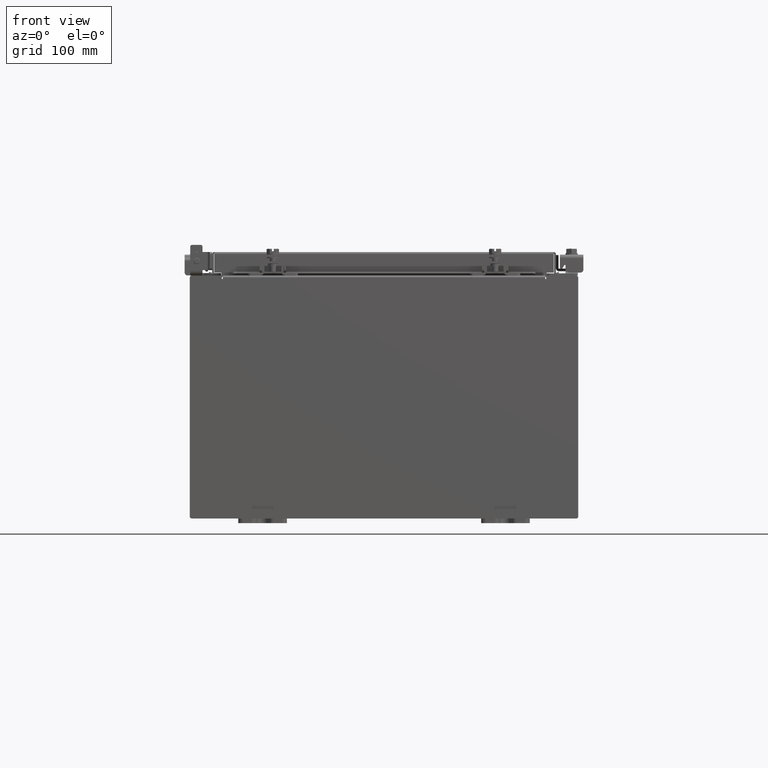
[diagram: clean part render]
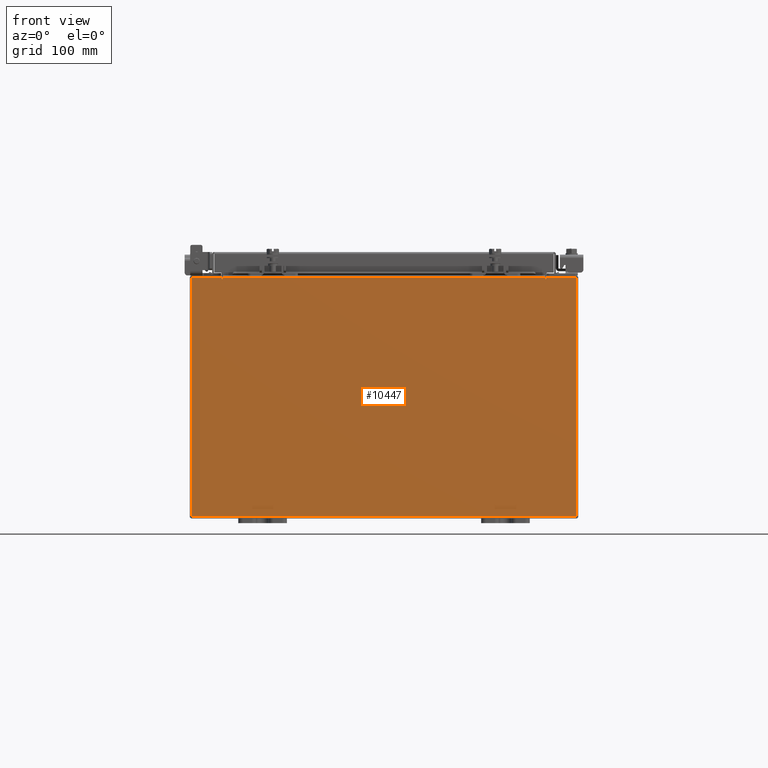
[diagram: same view with one face highlighted and labeled with its STEP entity id]
A machine part, front view. The second image highlights one B-rep face of the part: STEP entity #10447.
In plain terms, the highlighted planar face has unit normal (-0, 1, -0).
Its self-contained STEP definition (entity closure, byte-faithful):
#60 = CARTESIAN_POINT ( 'NONE',  ( -6.637200000000000900, -0.0000000000000000000, 4.874950000000001000 ) ) ;
#322 = CARTESIAN_POINT ( 'NONE',  ( 7.925299999999996500, 0.0000000000000000000, -4.925299999999998200 ) ) ;
#449 = ORIENTED_EDGE ( 'NONE', *, *, #14647, .T. ) ;
#488 = DIRECTION ( 'NONE',  ( 0.0000000000000000000, -1.000000000000000000, 0.0000000000000000000 ) ) ;
#594 = CARTESIAN_POINT ( 'NONE',  ( -7.925300000000002700, 0.0000000000000000000, -4.925299999999998200 ) ) ;
#746 = EDGE_CURVE ( 'NONE', #2899, #3376, #5145, .T. ) ;
#936 = VERTEX_POINT ( 'NONE', #21540 ) ;
#969 = CARTESIAN_POINT ( 'NONE',  ( -6.637200000000000900, -1.707404996040164500E-016, 4.912300000000001000 ) ) ;
#1412 = DIRECTION ( 'NONE',  ( 1.000000000000000000, 0.0000000000000000000, 0.0000000000000000000 ) ) ;
#1435 = CARTESIAN_POINT ( 'NONE',  ( -7.925300000000002700, 0.0000000000000000000, 4.925300000000000900 ) ) ;
#1608 = DIRECTION ( 'NONE',  ( 0.0000000000000000000, 0.0000000000000000000, 1.000000000000000000 ) ) ;
#2502 = EDGE_CURVE ( 'NONE', #2899, #3244, #4264, .T. ) ;
#2567 = CARTESIAN_POINT ( 'NONE',  ( -7.925300000000002700, 0.0000000000000000000, -4.925299999999998200 ) ) ;
#2899 = VERTEX_POINT ( 'NONE', #6778 ) ;
#2960 = LINE ( 'NONE', #20295, #20845 ) ;
#3244 = VERTEX_POINT ( 'NONE', #7835 ) ;
#3276 = CARTESIAN_POINT ( 'NONE',  ( 6.637199999999999100, 0.0000000000000000000, 0.0000000000000000000 ) ) ;
#3314 = VECTOR ( 'NONE', #11628, 39.37007874015748100 ) ;
#3376 = VERTEX_POINT ( 'NONE', #7309 ) ;
#3781 = AXIS2_PLACEMENT_3D ( 'NONE', #17560, #488, #12676 ) ;
#3867 = LINE ( 'NONE', #22046, #3314 ) ;
#4190 = DIRECTION ( 'NONE',  ( 1.000000000000000000, 0.0000000000000000000, 0.0000000000000000000 ) ) ;
#4264 = LINE ( 'NONE', #20467, #8400 ) ;
#4282 = VERTEX_POINT ( 'NONE', #21811 ) ;
#4412 = EDGE_LOOP ( 'NONE', ( #21709, #5655, #12862, #7135, #6607, #20739, #11516, #15934, #14807, #5050, #449, #20298 ) ) ;
#4793 = VERTEX_POINT ( 'NONE', #16652 ) ;
#5050 = ORIENTED_EDGE ( 'NONE', *, *, #9966, .T. ) ;
#5145 = LINE ( 'NONE', #1435, #18369 ) ;
#5427 = VERTEX_POINT ( 'NONE', #60 ) ;
#5534 = LINE ( 'NONE', #17636, #13684 ) ;
#5648 = VERTEX_POINT ( 'NONE', #594 ) ;
#5655 = ORIENTED_EDGE ( 'NONE', *, *, #21139, .F. ) ;
#6019 = EDGE_CURVE ( 'NONE', #3244, #4282, #13297, .T. ) ;
#6369 = CARTESIAN_POINT ( 'NONE',  ( -6.674550000000000900, 0.0000000000000000000, 4.874950000000001000 ) ) ;
#6607 = ORIENTED_EDGE ( 'NONE', *, *, #8392, .F. ) ;
#6776 = DIRECTION ( 'NONE',  ( -0.0000000000000000000, 1.000000000000000000, -0.0000000000000000000 ) ) ;
#6778 = CARTESIAN_POINT ( 'NONE',  ( 6.674549999999998200, 0.0000000000000000000, 4.925300000000000900 ) ) ;
#7135 = ORIENTED_EDGE ( 'NONE', *, *, #11867, .T. ) ;
#7254 = LINE ( 'NONE', #3276, #21006 ) ;
#7309 = CARTESIAN_POINT ( 'NONE',  ( 7.925299999999996500, 0.0000000000000000000, 4.925300000000000900 ) ) ;
#7502 = CARTESIAN_POINT ( 'NONE',  ( -6.637200000000000900, -0.0000000000000000000, 0.0000000000000000000 ) ) ;
#7747 = LINE ( 'NONE', #14579, #16882 ) ;
#7835 = CARTESIAN_POINT ( 'NONE',  ( 6.674549999999999100, 0.0000000000000000000, 4.874950000000001000 ) ) ;
#8024 = DIRECTION ( 'NONE',  ( 1.000000000000000000, 0.0000000000000000000, 0.0000000000000000000 ) ) ;
#8392 = EDGE_CURVE ( 'NONE', #4282, #4793, #7254, .T. ) ;
#8400 = VECTOR ( 'NONE', #15207, 39.37007874015748100 ) ;
#8616 = CARTESIAN_POINT ( 'NONE',  ( 6.655874999999998200, 0.0000000000000000000, 4.874950000000001000 ) ) ;
#9067 = DIRECTION ( 'NONE',  ( 0.0000000000000000000, 0.0000000000000000000, -1.000000000000000000 ) ) ;
#9243 = DIRECTION ( 'NONE',  ( 0.0000000000000000000, 0.0000000000000000000, -1.000000000000000000 ) ) ;
#9604 = VECTOR ( 'NONE', #8024, 39.37007874015748100 ) ;
#9966 = EDGE_CURVE ( 'NONE', #21319, #5648, #17433, .T. ) ;
#10364 = DIRECTION ( 'NONE',  ( 0.0000000000000000000, 0.0000000000000000000, -1.000000000000000000 ) ) ;
#10447 = ADVANCED_FACE ( 'NONE', ( #19018 ), #21258, .F. ) ;
#11452 = AXIS2_PLACEMENT_3D ( 'NONE', #8616, #20648, #10364 ) ;
#11516 = ORIENTED_EDGE ( 'NONE', *, *, #2502, .F. ) ;
#11628 = DIRECTION ( 'NONE',  ( 0.0000000000000000000, 0.0000000000000000000, 1.000000000000000000 ) ) ;
#11867 = EDGE_CURVE ( 'NONE', #20147, #4793, #13660, .T. ) ;
#12213 = CARTESIAN_POINT ( 'NONE',  ( -6.637200000000000900, -1.707404996040164500E-016, 4.912300000000001000 ) ) ;
#12676 = DIRECTION ( 'NONE',  ( 0.0000000000000000000, -0.0000000000000000000, -1.000000000000000000 ) ) ;
#12862 = ORIENTED_EDGE ( 'NONE', *, *, #16789, .F. ) ;
#13157 = VERTEX_POINT ( 'NONE', #20041 ) ;
#13297 = CIRCLE ( 'NONE', #11452, 0.01867500000000003900 ) ;
#13475 = DIRECTION ( 'NONE',  ( -0.0000000000000000000, -0.0000000000000000000, 1.000000000000000000 ) ) ;
#13660 = LINE ( 'NONE', #969, #9604 ) ;
#13684 = VECTOR ( 'NONE', #9067, 39.37007874015748100 ) ;
#14579 = CARTESIAN_POINT ( 'NONE',  ( -7.925300000000002700, 0.0000000000000000000, 4.925300000000000900 ) ) ;
#14608 = VERTEX_POINT ( 'NONE', #6369 ) ;
#14647 = EDGE_CURVE ( 'NONE', #5648, #936, #2960, .T. ) ;
#14713 = DIRECTION ( 'NONE',  ( -1.000000000000000000, -0.0000000000000000000, -0.0000000000000000000 ) ) ;
#14807 = ORIENTED_EDGE ( 'NONE', *, *, #19170, .T. ) ;
#15207 = DIRECTION ( 'NONE',  ( 0.0000000000000000000, 0.0000000000000000000, -1.000000000000000000 ) ) ;
#15508 = CIRCLE ( 'NONE', #22022, 0.01867500000000003900 ) ;
#15934 = ORIENTED_EDGE ( 'NONE', *, *, #746, .T. ) ;
#16652 = CARTESIAN_POINT ( 'NONE',  ( 6.637199999999999100, 0.0000000000000000000, 4.912300000000001000 ) ) ;
#16789 = EDGE_CURVE ( 'NONE', #20147, #5427, #19387, .T. ) ;
#16877 = VECTOR ( 'NONE', #14713, 39.37007874015748100 ) ;
#16882 = VECTOR ( 'NONE', #4190, 39.37007874015748100 ) ;
#17102 = CARTESIAN_POINT ( 'NONE',  ( -6.655875000000000900, 0.0000000000000000000, 4.874950000000001000 ) ) ;
#17433 = LINE ( 'NONE', #2567, #16877 ) ;
#17560 = CARTESIAN_POINT ( 'NONE',  ( 0.0000000000000000000, 0.0000000000000000000, 0.0000000000000000000 ) ) ;
#17636 = CARTESIAN_POINT ( 'NONE',  ( 7.925299999999996500, 0.0000000000000000000, 4.925300000000000900 ) ) ;
#18369 = VECTOR ( 'NONE', #1412, 39.37007874015748100 ) ;
#18818 = DIRECTION ( 'NONE',  ( 0.0000000000000000000, 0.0000000000000000000, -1.000000000000000000 ) ) ;
#18855 = VECTOR ( 'NONE', #9243, 39.37007874015748100 ) ;
#19018 = FACE_OUTER_BOUND ( 'NONE', #4412, .T. ) ;
#19170 = EDGE_CURVE ( 'NONE', #3376, #21319, #5534, .T. ) ;
#19387 = LINE ( 'NONE', #7502, #18855 ) ;
#20041 = CARTESIAN_POINT ( 'NONE',  ( -6.674550000000000900, 0.0000000000000000000, 4.925300000000000900 ) ) ;
#20147 = VERTEX_POINT ( 'NONE', #12213 ) ;
#20295 = CARTESIAN_POINT ( 'NONE',  ( -7.925300000000002700, 0.0000000000000000000, 4.925300000000000900 ) ) ;
#20298 = ORIENTED_EDGE ( 'NONE', *, *, #20355, .T. ) ;
#20355 = EDGE_CURVE ( 'NONE', #936, #13157, #7747, .T. ) ;
#20467 = CARTESIAN_POINT ( 'NONE',  ( 6.674549999999999100, 0.0000000000000000000, 0.0000000000000000000 ) ) ;
#20648 = DIRECTION ( 'NONE',  ( -0.0000000000000000000, 1.000000000000000000, -0.0000000000000000000 ) ) ;
#20739 = ORIENTED_EDGE ( 'NONE', *, *, #6019, .F. ) ;
#20845 = VECTOR ( 'NONE', #13475, 39.37007874015748100 ) ;
#21006 = VECTOR ( 'NONE', #1608, 39.37007874015748100 ) ;
#21061 = EDGE_CURVE ( 'NONE', #14608, #13157, #3867, .T. ) ;
#21139 = EDGE_CURVE ( 'NONE', #5427, #14608, #15508, .T. ) ;
#21258 = PLANE ( 'NONE',  #3781 ) ;
#21319 = VERTEX_POINT ( 'NONE', #322 ) ;
#21540 = CARTESIAN_POINT ( 'NONE',  ( -7.925300000000002700, 0.0000000000000000000, 4.925300000000000900 ) ) ;
#21709 = ORIENTED_EDGE ( 'NONE', *, *, #21061, .F. ) ;
#21811 = CARTESIAN_POINT ( 'NONE',  ( 6.637199999999997300, 0.0000000000000000000, 4.874950000000001000 ) ) ;
#22022 = AXIS2_PLACEMENT_3D ( 'NONE', #17102, #6776, #18818 ) ;
#22046 = CARTESIAN_POINT ( 'NONE',  ( -6.674550000000000900, -0.0000000000000000000, 0.0000000000000000000 ) ) ;